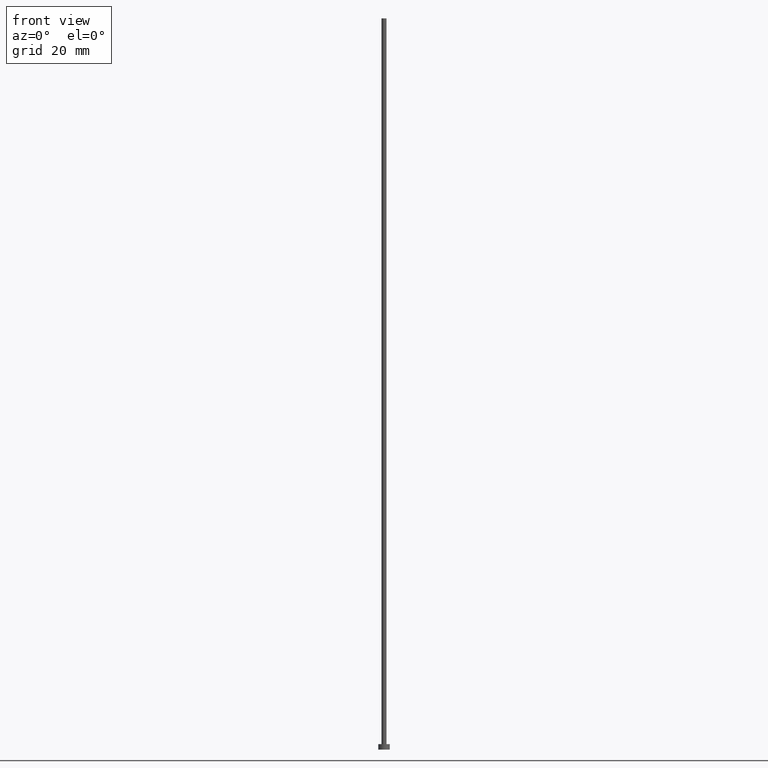
[diagram: clean part render]
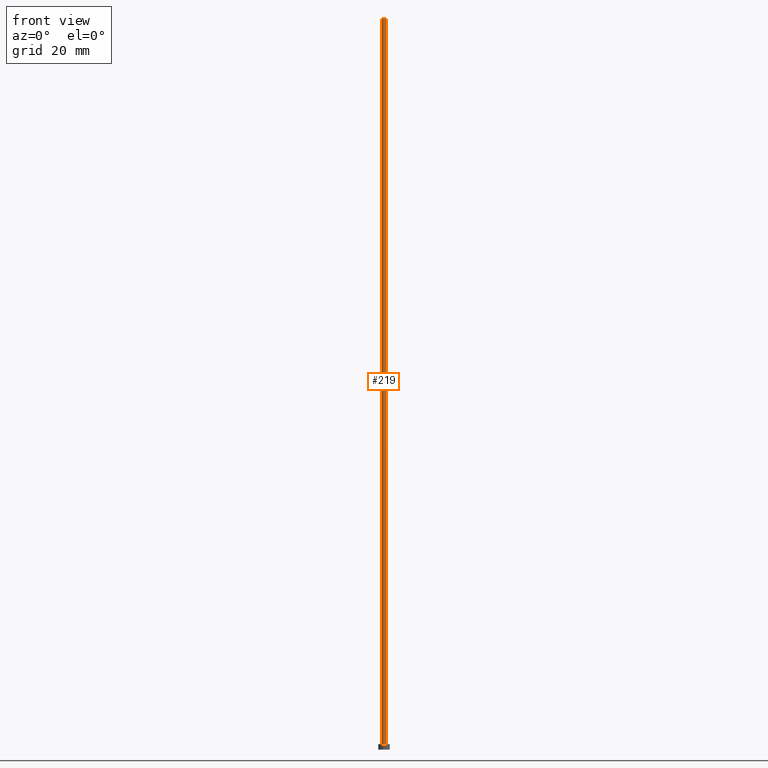
[diagram: same view with one face highlighted and labeled with its STEP entity id]
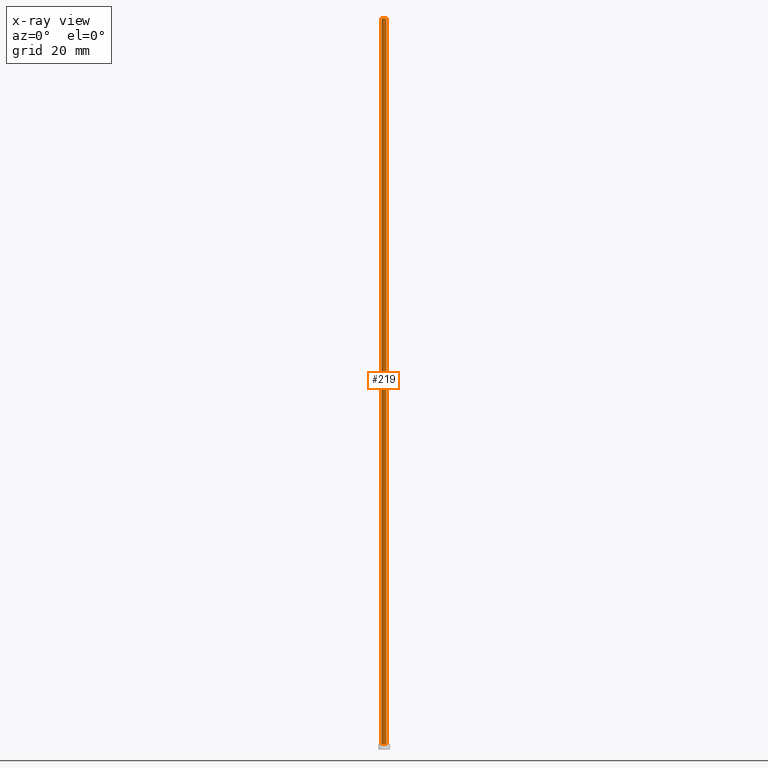
[diagram: x-ray of the same camera — body ghosted, the highlighted face saturated]
A machine part, front view. The second image highlights one B-rep face of the part: STEP entity #219.
The next image is the same camera in x-ray: the body ghosted, the highlighted face saturated — about 0% of this face is hidden behind the body in this view.
In plain terms, the highlighted cylindrical surface (edge-blend (fillet) strip) has radius 0.55 mm, axis along (-0, -0, -1).
Its self-contained STEP definition (entity closure, byte-faithful):
#7 = VECTOR ( 'NONE', #156, 1000.000000000000000 ) ;
#8 = EDGE_CURVE ( 'NONE', #227, #137, #212, .T. ) ;
#13 = DIRECTION ( 'NONE',  ( -0.000000000000000000, -0.000000000000000000, -1.000000000000000000 ) ) ;
#17 = AXIS2_PLACEMENT_3D ( 'NONE', #31, #222, #242 ) ;
#31 = CARTESIAN_POINT ( 'NONE',  ( 0.000000000000000000, 0.000000000000000000, 160.0000000000000284 ) ) ;
#33 = DIRECTION ( 'NONE',  ( -0.000000000000000000, -0.000000000000000000, -1.000000000000000000 ) ) ;
#45 = AXIS2_PLACEMENT_3D ( 'NONE', #149, #224, #56 ) ;
#46 = EDGE_LOOP ( 'NONE', ( #65, #79, #61, #251 ) ) ;
#49 = VECTOR ( 'NONE', #33, 1000.000000000000000 ) ;
#56 = DIRECTION ( 'NONE',  ( 1.000000000000000000, 0.000000000000000000, 0.000000000000000000 ) ) ;
#61 = ORIENTED_EDGE ( 'NONE', *, *, #8, .T. ) ;
#63 = CYLINDRICAL_SURFACE ( 'NONE', #88, 0.5500000000000000444 ) ;
#65 = ORIENTED_EDGE ( 'NONE', *, *, #225, .F. ) ;
#73 = CARTESIAN_POINT ( 'NONE',  ( -0.5500000000000000444, 0.000000000000000000, 160.0000000000000284 ) ) ;
#79 = ORIENTED_EDGE ( 'NONE', *, *, #110, .F. ) ;
#88 = AXIS2_PLACEMENT_3D ( 'NONE', #135, #13, #91 ) ;
#91 = DIRECTION ( 'NONE',  ( -1.000000000000000000, 0.000000000000000000, 0.000000000000000000 ) ) ;
#110 = EDGE_CURVE ( 'NONE', #227, #173, #126, .T. ) ;
#126 = CIRCLE ( 'NONE', #17, 0.5500000000000000444 ) ;
#132 = FACE_OUTER_BOUND ( 'NONE', #46, .T. ) ;
#135 = CARTESIAN_POINT ( 'NONE',  ( 0.000000000000000000, 0.000000000000000000, 160.0000000000000284 ) ) ;
#137 = VERTEX_POINT ( 'NONE', #240 ) ;
#149 = CARTESIAN_POINT ( 'NONE',  ( 0.000000000000000000, 0.000000000000000000, 1.199999999999999956 ) ) ;
#156 = DIRECTION ( 'NONE',  ( -0.000000000000000000, -0.000000000000000000, -1.000000000000000000 ) ) ;
#161 = CARTESIAN_POINT ( 'NONE',  ( -0.5500000000000000444, 0.000000000000000000, 160.0000000000000284 ) ) ;
#164 = CARTESIAN_POINT ( 'NONE',  ( 0.5500000000000000444, 6.735557395310442516E-17, 1.199999999999999956 ) ) ;
#169 = LINE ( 'NONE', #244, #49 ) ;
#171 = VERTEX_POINT ( 'NONE', #164 ) ;
#173 = VERTEX_POINT ( 'NONE', #182 ) ;
#182 = CARTESIAN_POINT ( 'NONE',  ( 0.5500000000000000444, 6.735557395310442516E-17, 160.0000000000000284 ) ) ;
#185 = CIRCLE ( 'NONE', #45, 0.5500000000000000444 ) ;
#212 = LINE ( 'NONE', #161, #7 ) ;
#219 = ADVANCED_FACE ( 'NONE', ( #132 ), #63, .T. ) ;
#222 = DIRECTION ( 'NONE',  ( 0.000000000000000000, 0.000000000000000000, 1.000000000000000000 ) ) ;
#224 = DIRECTION ( 'NONE',  ( 0.000000000000000000, 0.000000000000000000, 1.000000000000000000 ) ) ;
#225 = EDGE_CURVE ( 'NONE', #173, #171, #169, .T. ) ;
#227 = VERTEX_POINT ( 'NONE', #73 ) ;
#239 = EDGE_CURVE ( 'NONE', #137, #171, #185, .T. ) ;
#240 = CARTESIAN_POINT ( 'NONE',  ( -0.5500000000000000444, 0.000000000000000000, 1.199999999999999956 ) ) ;
#242 = DIRECTION ( 'NONE',  ( 1.000000000000000000, 0.000000000000000000, 0.000000000000000000 ) ) ;
#244 = CARTESIAN_POINT ( 'NONE',  ( 0.5500000000000000444, 6.735557395310442516E-17, 160.0000000000000284 ) ) ;
#251 = ORIENTED_EDGE ( 'NONE', *, *, #239, .T. ) ;